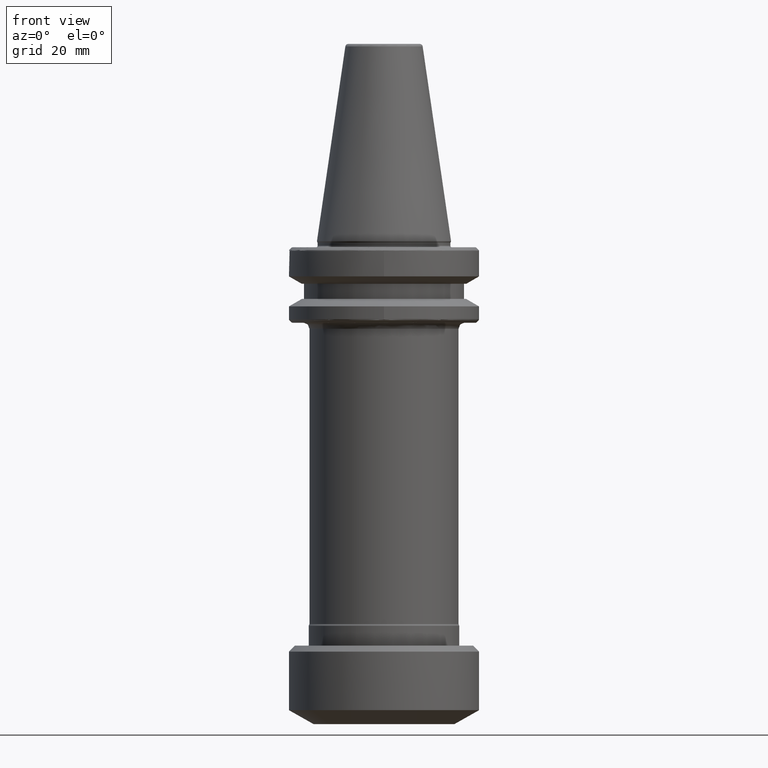
[diagram: clean part render]
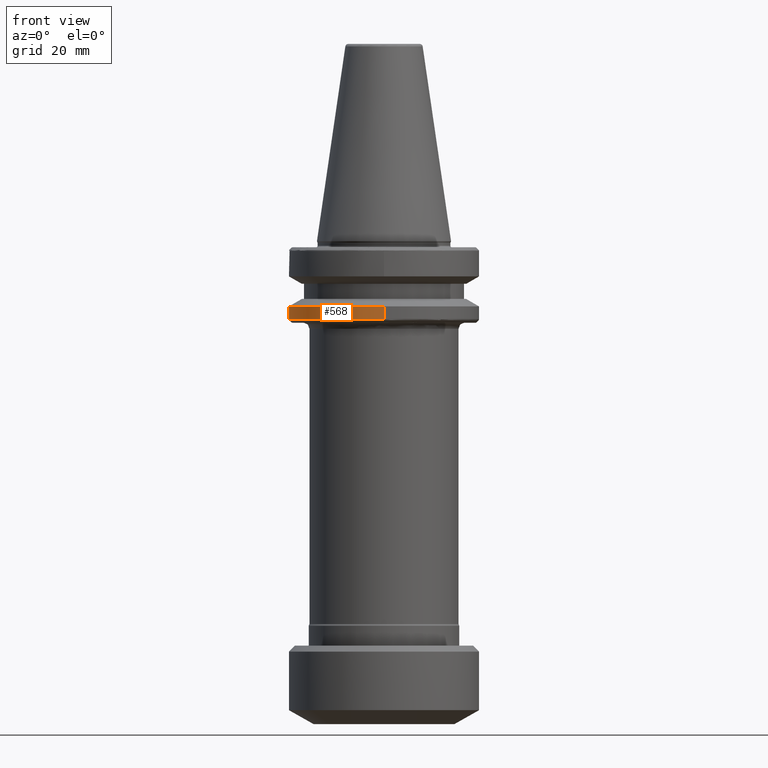
[diagram: same view with one face highlighted and labeled with its STEP entity id]
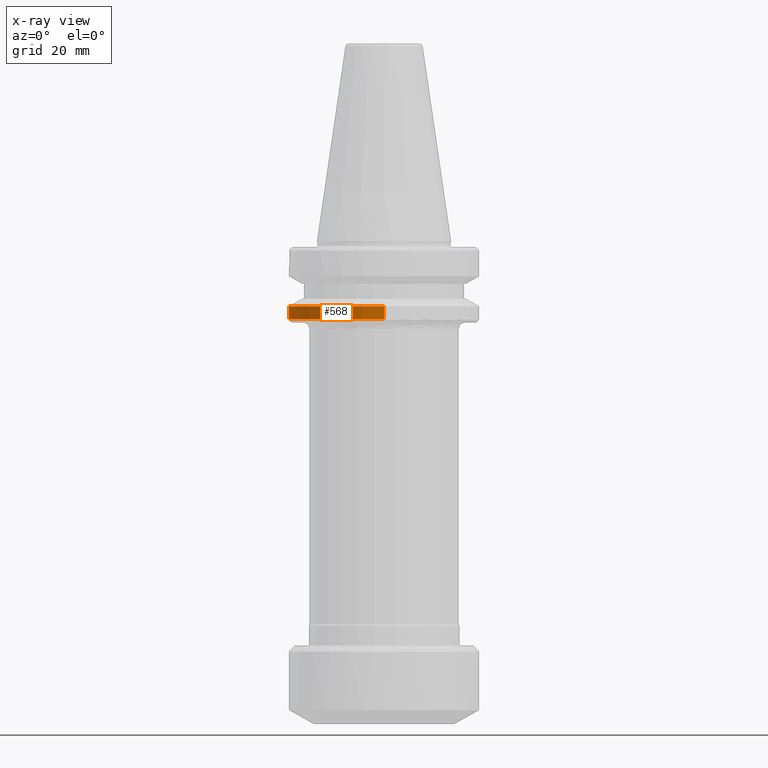
[diagram: x-ray of the same camera — body ghosted, the highlighted face saturated]
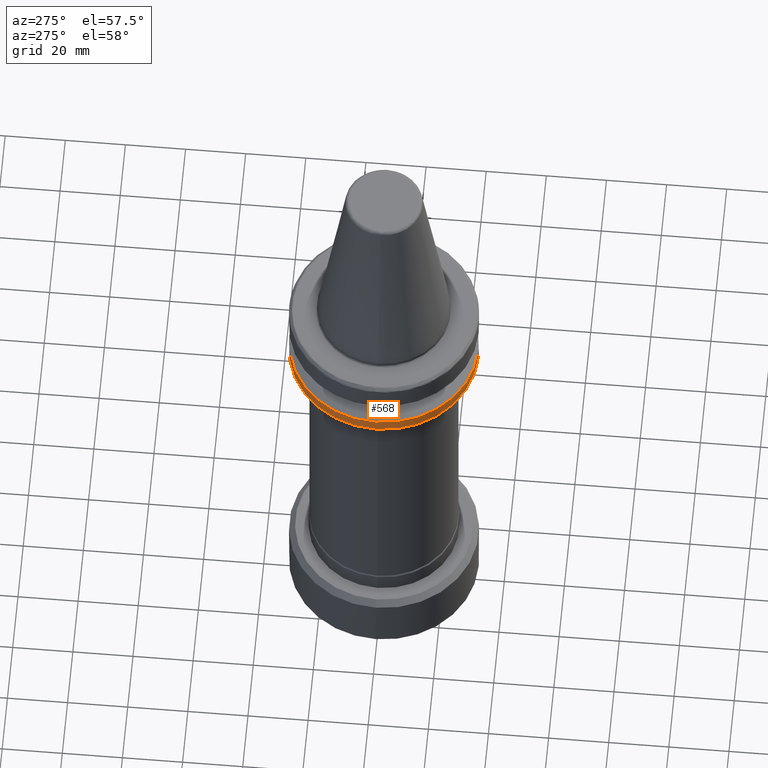
[diagram: same view with one face highlighted and labeled with its STEP entity id]
A machine part, front view. The second image highlights one B-rep face of the part: STEP entity #568.
The next image is the same camera in x-ray: the body ghosted, the highlighted face saturated — about 0% of this face is hidden behind the body in this view.
A second angle (auxiliary view) of the same face is appended — the face is thin or edge-on in the first view.
In plain terms, the highlighted cylindrical surface (partial cylindrical patch) has radius 31.5 mm, axis along (0, -0, 1).
Its self-contained STEP definition (entity closure, byte-faithful):
#52 = ORIENTED_EDGE ( 'NONE', *, *, #158, .T. ) ;
#70 = AXIS2_PLACEMENT_3D ( 'NONE', #2064, #2826, #278 ) ;
#158 = EDGE_CURVE ( 'NONE', #220, #1323, #373, .T. ) ;
#163 = DIRECTION ( 'NONE',  ( 0.0000000000000000000, 1.000000000000000000, -2.202823461556582700E-016 ) ) ;
#220 = VERTEX_POINT ( 'NONE', #1068 ) ;
#229 = CARTESIAN_POINT ( 'NONE',  ( 3.857637417314162700E-015, 31.50000000000000000, -25.83431457497092200 ) ) ;
#237 = DIRECTION ( 'NONE',  ( 0.0000000000000000000, -5.507058653894625200E-017, 1.000000000000000000 ) ) ;
#278 = DIRECTION ( 'NONE',  ( 1.000000000000000000, 0.0000000000000000000, 0.0000000000000000000 ) ) ;
#373 = LINE ( 'NONE', #1293, #1699 ) ;
#501 = EDGE_CURVE ( 'NONE', #2812, #1323, #3338, .T. ) ;
#507 = EDGE_LOOP ( 'NONE', ( #2001, #1218, #1042, #52, #2278, #2825 ) ) ;
#568 = ADVANCED_FACE ( 'NONE', ( #662 ), #707, .T. ) ;
#662 = FACE_OUTER_BOUND ( 'NONE', #507, .T. ) ;
#665 = CARTESIAN_POINT ( 'NONE',  ( 0.0000000000000000000, 0.0000000000000000000, -21.58216243643670800 ) ) ;
#670 = EDGE_CURVE ( 'NONE', #220, #678, #2093, .T. ) ;
#678 = VERTEX_POINT ( 'NONE', #2727 ) ;
#707 = CYLINDRICAL_SURFACE ( 'NONE', #1309, 31.50000000000000000 ) ;
#730 = CIRCLE ( 'NONE', #3332, 31.50000000001812600 ) ;
#761 = EDGE_CURVE ( 'NONE', #1014, #2369, #1542, .T. ) ;
#767 = CARTESIAN_POINT ( 'NONE',  ( 3.857637417314718000E-015, 31.50000000000453000, -21.58216243643670800 ) ) ;
#839 = VECTOR ( 'NONE', #1522, 1000.000000000000000 ) ;
#885 = CARTESIAN_POINT ( 'NONE',  ( 0.0000000000000000000, 0.0000000000000000000, -25.83431457500000100 ) ) ;
#940 = DIRECTION ( 'NONE',  ( 1.000000000000000000, 0.0000000000000000000, 0.0000000000000000000 ) ) ;
#964 = AXIS2_PLACEMENT_3D ( 'NONE', #1832, #2948, #2102 ) ;
#1014 = VERTEX_POINT ( 'NONE', #229 ) ;
#1042 = ORIENTED_EDGE ( 'NONE', *, *, #670, .F. ) ;
#1068 = CARTESIAN_POINT ( 'NONE',  ( 0.0000000000000000000, -31.50000000000000000, -25.83431457497092200 ) ) ;
#1218 = ORIENTED_EDGE ( 'NONE', *, *, #1868, .F. ) ;
#1293 = CARTESIAN_POINT ( 'NONE',  ( 0.0000000000000000000, -31.50000000000000000, -25.83431457500000100 ) ) ;
#1295 = AXIS2_PLACEMENT_3D ( 'NONE', #665, #2522, #940 ) ;
#1309 = AXIS2_PLACEMENT_3D ( 'NONE', #885, #1817, #2994 ) ;
#1323 = VERTEX_POINT ( 'NONE', #1770 ) ;
#1522 = DIRECTION ( 'NONE',  ( 0.0000000000000000000, -5.507058653894625200E-017, 1.000000000000000000 ) ) ;
#1542 = LINE ( 'NONE', #1824, #839 ) ;
#1699 = VECTOR ( 'NONE', #237, 1000.000000000000000 ) ;
#1748 = DIRECTION ( 'NONE',  ( -0.0000000000000000000, -1.652117596172950100E-016, -1.000000000000000000 ) ) ;
#1770 = CARTESIAN_POINT ( 'NONE',  ( 0.0000000000000000000, -31.50000000000453000, -21.58216243643670800 ) ) ;
#1817 = DIRECTION ( 'NONE',  ( 0.0000000000000000000, -5.507058653894625200E-017, 1.000000000000000000 ) ) ;
#1824 = CARTESIAN_POINT ( 'NONE',  ( 3.857637417314162700E-015, 31.50000000000000000, -25.83431457500000100 ) ) ;
#1832 = CARTESIAN_POINT ( 'NONE',  ( 0.0000000000000000000, 0.0000000000000000000, -25.83431457497091400 ) ) ;
#1868 = EDGE_CURVE ( 'NONE', #678, #1014, #730, .T. ) ;
#1988 = CARTESIAN_POINT ( 'NONE',  ( -31.50000000000453000, 0.0000000000000000000, -21.58216243643670800 ) ) ;
#2001 = ORIENTED_EDGE ( 'NONE', *, *, #761, .F. ) ;
#2062 = EDGE_CURVE ( 'NONE', #2369, #2812, #2745, .T. ) ;
#2064 = CARTESIAN_POINT ( 'NONE',  ( 0.0000000000000000000, 0.0000000000000000000, -21.58216243643670800 ) ) ;
#2093 = CIRCLE ( 'NONE', #964, 31.50000000001812600 ) ;
#2102 = DIRECTION ( 'NONE',  ( 0.0000000000000000000, 1.000000000000000000, 2.202823461556582700E-016 ) ) ;
#2278 = ORIENTED_EDGE ( 'NONE', *, *, #501, .F. ) ;
#2369 = VERTEX_POINT ( 'NONE', #767 ) ;
#2522 = DIRECTION ( 'NONE',  ( -0.0000000000000000000, -0.0000000000000000000, 1.000000000000000000 ) ) ;
#2727 = CARTESIAN_POINT ( 'NONE',  ( -31.50000000001359300, -4.845568498675163300E-009, -25.83431457497197000 ) ) ;
#2745 = CIRCLE ( 'NONE', #1295, 31.50000000000453000 ) ;
#2812 = VERTEX_POINT ( 'NONE', #1988 ) ;
#2825 = ORIENTED_EDGE ( 'NONE', *, *, #2062, .F. ) ;
#2826 = DIRECTION ( 'NONE',  ( -0.0000000000000000000, -0.0000000000000000000, 1.000000000000000000 ) ) ;
#2948 = DIRECTION ( 'NONE',  ( -0.0000000000000000000, 1.652117596172950100E-016, -1.000000000000000000 ) ) ;
#2994 = DIRECTION ( 'NONE',  ( 0.0000000000000000000, -1.000000000000000000, 0.0000000000000000000 ) ) ;
#3332 = AXIS2_PLACEMENT_3D ( 'NONE', #3358, #1748, #163 ) ;
#3338 = CIRCLE ( 'NONE', #70, 31.50000000000453000 ) ;
#3358 = CARTESIAN_POINT ( 'NONE',  ( 0.0000000000000000000, 0.0000000000000000000, -25.83431457497091400 ) ) ;